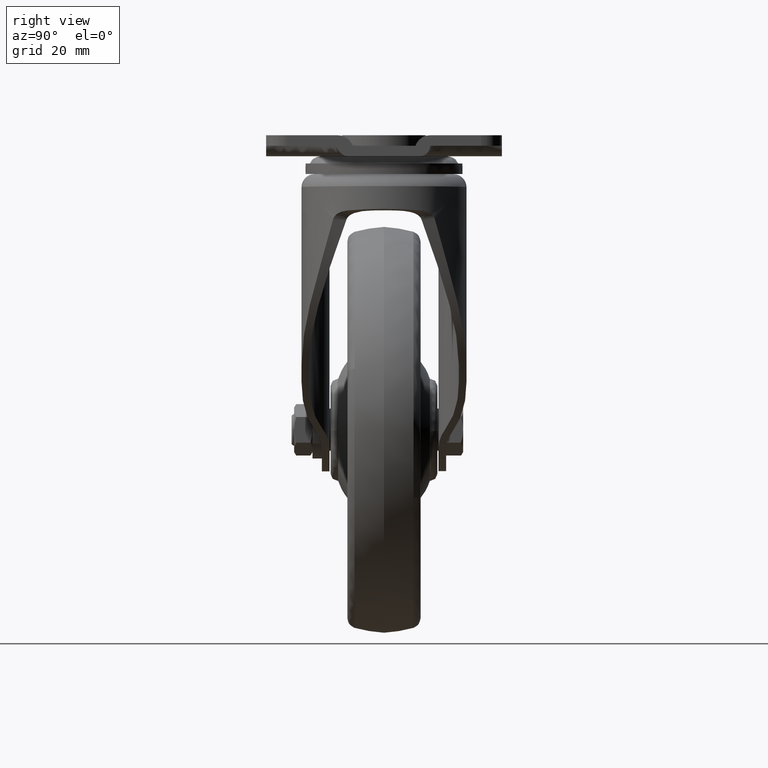
[diagram: clean part render]
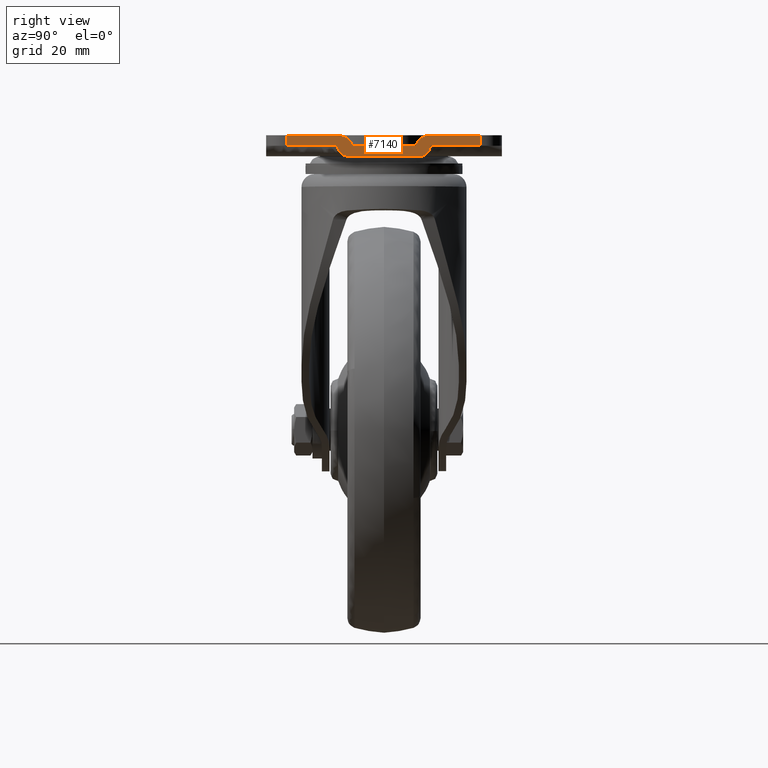
[diagram: same view with one face highlighted and labeled with its STEP entity id]
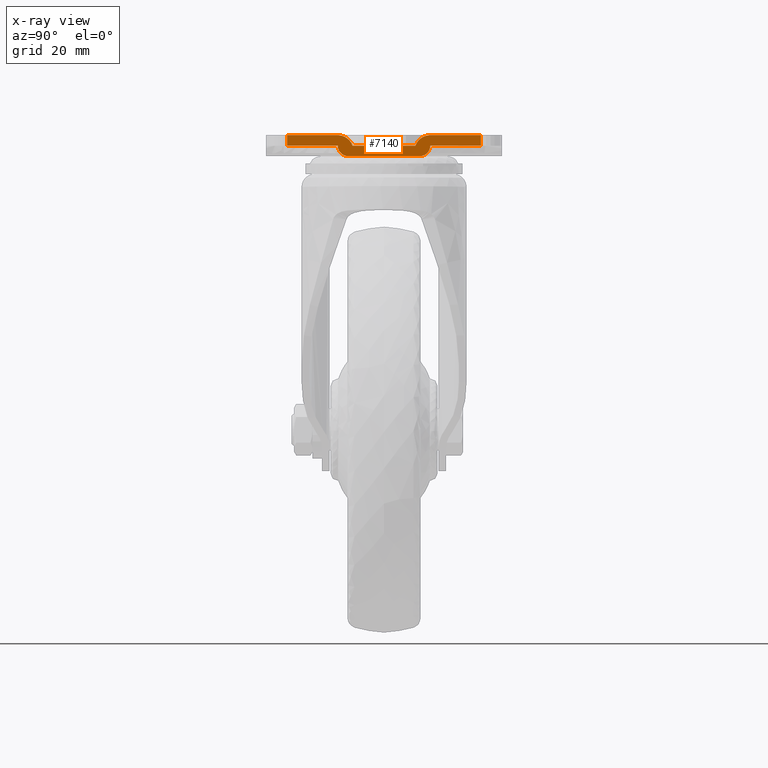
[diagram: x-ray of the same camera — body ghosted, the highlighted face saturated]
A machine part, right view. The second image highlights one B-rep face of the part: STEP entity #7140.
The next image is the same camera in x-ray: the body ghosted, the highlighted face saturated — about 0% of this face is hidden behind the body in this view.
In plain terms, the highlighted face is a freeform B-spline surface patch.
Its self-contained STEP definition (entity closure, byte-faithful):
#5544=CARTESIAN_POINT('',(62.499677999999903,37.0,-4.0));
#5545=VERTEX_POINT('',#5544);
#5568=CARTESIAN_POINT('',(62.499677999999903,37.0,0.0));
#5569=VERTEX_POINT('',#5568);
#5583=CARTESIAN_POINT('',(62.499677999999903,37.0,-4.0));
#5584=CARTESIAN_POINT('',(62.499677999999903,37.0,0.0));
#5585=QUASI_UNIFORM_CURVE('',1,(#5583,#5584),.UNSPECIFIED.,.F.,.U.);
#5586=EDGE_CURVE('',#5545,#5569,#5585,.T.);
#5607=CARTESIAN_POINT('',(62.499677999999903,-37.0,-4.0));
#5608=VERTEX_POINT('',#5607);
#5622=CARTESIAN_POINT('',(62.499677999999903,-37.0,0.0));
#5623=VERTEX_POINT('',#5622);
#5624=CARTESIAN_POINT('',(62.499677999999903,-37.0,-4.0));
#5625=CARTESIAN_POINT('',(62.499677999999903,-37.0,0.0));
#5626=QUASI_UNIFORM_CURVE('',1,(#5624,#5625),.UNSPECIFIED.,.F.,.U.);
#5627=EDGE_CURVE('',#5608,#5623,#5626,.T.);
#5726=CARTESIAN_POINT('',(62.499677999999903,17.660000000000000,-4.0));
#5727=VERTEX_POINT('',#5726);
#5728=CARTESIAN_POINT('',(62.499677999999903,17.660000000000000,-4.0));
#5729=CARTESIAN_POINT('',(62.499677999999903,37.0,-4.0));
#5730=QUASI_UNIFORM_CURVE('',1,(#5728,#5729),.UNSPECIFIED.,.F.,.U.);
#5731=EDGE_CURVE('',#5727,#5545,#5730,.T.);
#5767=CARTESIAN_POINT('',(62.499677999999903,-17.660000000000000,-4.0));
#5768=VERTEX_POINT('',#5767);
#5769=CARTESIAN_POINT('',(62.499677999999903,-37.0,-4.0));
#5770=CARTESIAN_POINT('',(62.499677999999903,-17.660000000000000,-4.0));
#5771=QUASI_UNIFORM_CURVE('',1,(#5769,#5770),.UNSPECIFIED.,.F.,.U.);
#5772=EDGE_CURVE('',#5608,#5768,#5771,.T.);
#6032=CARTESIAN_POINT('',(62.499677999999903,12.0,-4.0));
#6033=VERTEX_POINT('',#6032);
#6039=CARTESIAN_POINT('',(62.499677999999903,17.656854249492401,0.0));
#6040=VERTEX_POINT('',#6039);
#6041=CARTESIAN_POINT('',(62.499677999999903,17.656854249492401,0.0));
#6042=CARTESIAN_POINT('',(62.499677999999889,13.414213562373106,0.0));
#6043=CARTESIAN_POINT('',(62.499677999999903,12.000000000000020,-4.000000000000005));
#6051=(BOUNDED_CURVE()B_SPLINE_CURVE(2,(#6041,#6042,#6043),.UNSPECIFIED.,.F.,.U.)CURVE()GEOMETRIC_REPRESENTATION_ITEM()QUASI_UNIFORM_CURVE()RATIONAL_B_SPLINE_CURVE((1.0,0.816496580927726,1.0))REPRESENTATION_ITEM(''));
#6052=EDGE_CURVE('',#6040,#6033,#6051,.T.);
#6396=CARTESIAN_POINT('',(62.499677999999903,-12.0,-4.0));
#6397=VERTEX_POINT('',#6396);
#6398=CARTESIAN_POINT('',(62.499677999999903,-17.656854249492351,0.0));
#6399=VERTEX_POINT('',#6398);
#6400=CARTESIAN_POINT('',(62.499677999999903,-11.999999999999970,-3.999999999999991));
#6401=CARTESIAN_POINT('',(62.499677999999896,-13.414213562373073,0.0));
#6402=CARTESIAN_POINT('',(62.499677999999903,-17.656854249492351,0.0));
#6410=(BOUNDED_CURVE()B_SPLINE_CURVE(2,(#6400,#6401,#6402),.UNSPECIFIED.,.F.,.U.)CURVE()GEOMETRIC_REPRESENTATION_ITEM()QUASI_UNIFORM_CURVE()RATIONAL_B_SPLINE_CURVE((1.0,0.816496580927726,1.0))REPRESENTATION_ITEM(''));
#6411=EDGE_CURVE('',#6397,#6399,#6410,.T.);
#6521=CARTESIAN_POINT('',(62.499677999999903,13.660000000000000,-8.0));
#6522=VERTEX_POINT('',#6521);
#6523=CARTESIAN_POINT('',(62.499677999999903,13.660000000000000,-8.0));
#6524=CARTESIAN_POINT('',(62.499677999999882,17.660000000000000,-8.0));
#6525=CARTESIAN_POINT('',(62.499677999999903,17.660000000000000,-4.0));
#6533=(BOUNDED_CURVE()B_SPLINE_CURVE(2,(#6523,#6524,#6525),.UNSPECIFIED.,.F.,.U.)CURVE()GEOMETRIC_REPRESENTATION_ITEM()QUASI_UNIFORM_CURVE()RATIONAL_B_SPLINE_CURVE((1.0,0.707106781186548,1.0))REPRESENTATION_ITEM(''));
#6534=EDGE_CURVE('',#6522,#5727,#6533,.T.);
#6830=CARTESIAN_POINT('',(62.499677999999903,-13.660000000000000,-8.0));
#6831=VERTEX_POINT('',#6830);
#6832=CARTESIAN_POINT('',(62.499677999999903,-17.660000000000000,-4.0));
#6833=CARTESIAN_POINT('',(62.499677999999882,-17.660000000000000,-8.0));
#6834=CARTESIAN_POINT('',(62.499677999999903,-13.660000000000000,-8.0));
#6842=(BOUNDED_CURVE()B_SPLINE_CURVE(2,(#6832,#6833,#6834),.UNSPECIFIED.,.F.,.U.)CURVE()GEOMETRIC_REPRESENTATION_ITEM()QUASI_UNIFORM_CURVE()RATIONAL_B_SPLINE_CURVE((1.0,0.707106781186548,1.0))REPRESENTATION_ITEM(''));
#6843=EDGE_CURVE('',#5768,#6831,#6842,.T.);
#6939=CARTESIAN_POINT('',(62.499677999999903,12.0,-4.0));
#6940=CARTESIAN_POINT('',(62.499677999999903,-12.0,-4.0));
#6941=QUASI_UNIFORM_CURVE('',1,(#6939,#6940),.UNSPECIFIED.,.F.,.U.);
#6942=EDGE_CURVE('',#6033,#6397,#6941,.T.);
#7020=CARTESIAN_POINT('',(62.499677999999903,-37.0,0.0));
#7021=CARTESIAN_POINT('',(62.499677999999903,-17.656854249492351,0.0));
#7022=QUASI_UNIFORM_CURVE('',1,(#7020,#7021),.UNSPECIFIED.,.F.,.U.);
#7023=EDGE_CURVE('',#5623,#6399,#7022,.T.);
#7049=CARTESIAN_POINT('',(62.499677999999903,17.656854249492401,0.0));
#7050=CARTESIAN_POINT('',(62.499677999999903,37.0,0.0));
#7051=QUASI_UNIFORM_CURVE('',1,(#7049,#7050),.UNSPECIFIED.,.F.,.U.);
#7052=EDGE_CURVE('',#6040,#5569,#7051,.T.);
#7117=CARTESIAN_POINT('',(62.499677999999903,-40.696299856573653,-8.399599984494445));
#7118=CARTESIAN_POINT('',(62.499677999999903,40.696301841408307,-8.399599984494445));
#7119=CARTESIAN_POINT('',(62.499677999999903,-40.696299856573653,0.399600199071168));
#7120=CARTESIAN_POINT('',(62.499677999999903,40.696301841408307,0.399600199071168));
#7121=B_SPLINE_SURFACE_WITH_KNOTS('',1,1,((#7117,#7119),(#7118,#7120)),.UNSPECIFIED.,.F.,.F.,.U.,(2,2),(2,2),(0.0,81.392601697981959),(0.0,8.799200183565613),.UNSPECIFIED.);
#7122=ORIENTED_EDGE('',*,*,#6942,.T.);
#7123=ORIENTED_EDGE('',*,*,#6411,.T.);
#7124=ORIENTED_EDGE('',*,*,#7023,.F.);
#7125=ORIENTED_EDGE('',*,*,#5627,.F.);
#7126=ORIENTED_EDGE('',*,*,#5772,.T.);
#7127=ORIENTED_EDGE('',*,*,#6843,.T.);
#7128=CARTESIAN_POINT('',(62.499677999999903,-13.660000000000000,-8.0));
#7129=CARTESIAN_POINT('',(62.499677999999903,13.660000000000000,-8.0));
#7130=QUASI_UNIFORM_CURVE('',1,(#7128,#7129),.UNSPECIFIED.,.F.,.U.);
#7131=EDGE_CURVE('',#6831,#6522,#7130,.T.);
#7132=ORIENTED_EDGE('',*,*,#7131,.T.);
#7133=ORIENTED_EDGE('',*,*,#6534,.T.);
#7134=ORIENTED_EDGE('',*,*,#5731,.T.);
#7135=ORIENTED_EDGE('',*,*,#5586,.T.);
#7136=ORIENTED_EDGE('',*,*,#7052,.F.);
#7137=ORIENTED_EDGE('',*,*,#6052,.T.);
#7138=EDGE_LOOP('',(#7122,#7123,#7124,#7125,#7126,#7127,#7132,#7133,#7134,#7135,#7136,#7137));
#7139=FACE_OUTER_BOUND('',#7138,.T.);
#7140=ADVANCED_FACE('',(#7139),#7121,.T.);